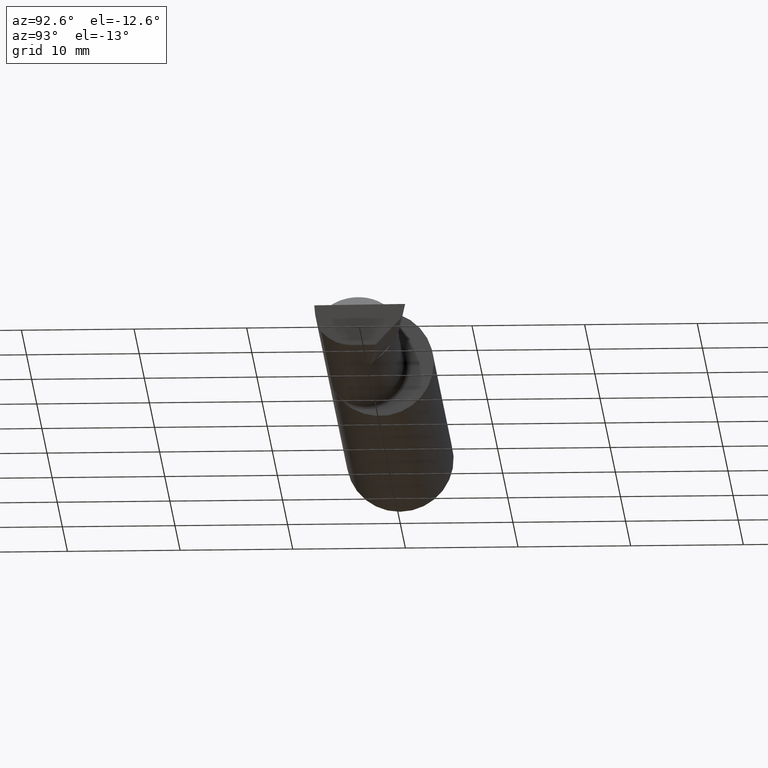
[diagram: clean part render]
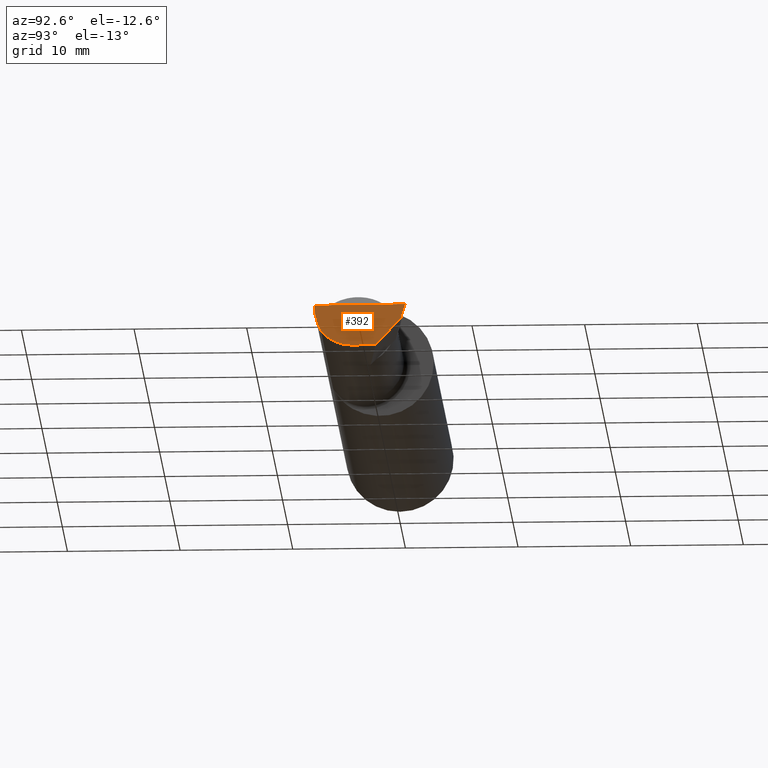
[diagram: same view with one face highlighted and labeled with its STEP entity id]
A machine part, auxiliary view. The second image highlights one B-rep face of the part: STEP entity #392.
In plain terms, the highlighted planar face has unit normal (-0.9922, 0.026, 0.1219).
Its self-contained STEP definition (entity closure, byte-faithful):
#1 = PLANE ( 'NONE',  #517 ) ;
#13 = CARTESIAN_POINT ( 'NONE',  ( 2.493766568580444432, 0.1168246249203732934, -0.04780233936830599606 ) ) ;
#17 = CARTESIAN_POINT ( 'NONE',  ( 2.493439983562941720, 0.1146611065212079089, -0.04999999999999999584 ) ) ;
#21 = VECTOR ( 'NONE', #584, 39.37007874015748854 ) ;
#35 =( BOUNDED_CURVE ( )  B_SPLINE_CURVE ( 3, ( #502, #418, #177, #459 ),
 .UNSPECIFIED., .F., .T. ) 
 B_SPLINE_CURVE_WITH_KNOTS ( ( 4, 4 ),
 ( 0.8516985021657653698, 1.360746882515200484 ),
 .UNSPECIFIED. ) 
 CURVE ( )  GEOMETRIC_REPRESENTATION_ITEM ( )  RATIONAL_B_SPLINE_CURVE ( ( 1.000000000000000000, 0.9785221379938656705, 0.9785221379938656705, 1.000000000000000000 ) ) 
 REPRESENTATION_ITEM ( '' )  );
#46 = VERTEX_POINT ( 'NONE', #512 ) ;
#50 = FACE_OUTER_BOUND ( 'NONE', #90, .T. ) ;
#51 = EDGE_CURVE ( 'NONE', #379, #128, #35, .T. ) ;
#60 = CARTESIAN_POINT ( 'NONE',  ( 2.500188977433779769, 0.1311105994646662165, 0.001440373173041280741 ) ) ;
#68 = EDGE_CURVE ( 'NONE', #620, #589, #403, .T. ) ;
#70 = LINE ( 'NONE', #60, #298 ) ;
#73 = CARTESIAN_POINT ( 'NONE',  ( 2.477873865042410806, -0.05739999999999999963, -0.1400500000000000633 ) ) ;
#86 = CARTESIAN_POINT ( 'NONE',  ( 2.480058035321255794, 0.02601009779168077587, -0.1400500000000000633 ) ) ;
#90 = EDGE_LOOP ( 'NONE', ( #96, #438, #268, #136, #349, #474 ) ) ;
#96 = ORIENTED_EDGE ( 'NONE', *, *, #288, .T. ) ;
#117 = VECTOR ( 'NONE', #168, 39.37007874015748854 ) ;
#128 = VERTEX_POINT ( 'NONE', #308 ) ;
#133 = VERTEX_POINT ( 'NONE', #73 ) ;
#136 = ORIENTED_EDGE ( 'NONE', *, *, #156, .T. ) ;
#156 = EDGE_CURVE ( 'NONE', #589, #46, #70, .T. ) ;
#168 = DIRECTION ( 'NONE',  ( 0.1053106618240635256, 0.6976485211320200275, 0.7086580314005359593 ) ) ;
#177 = CARTESIAN_POINT ( 'NONE',  ( 2.487725449370724817, -0.1873500000000000443, -0.03213820089768505694 ) ) ;
#211 =( BOUNDED_CURVE ( )  B_SPLINE_CURVE ( 3, ( #561, #425, #323, #612 ),
 .UNSPECIFIED., .F., .T. ) 
 B_SPLINE_CURVE_WITH_KNOTS ( ( 4, 4 ),
 ( 5.632580117768154260, 6.493234751459282528 ),
 .UNSPECIFIED. ) 
 CURVE ( )  GEOMETRIC_REPRESENTATION_ITEM ( )  RATIONAL_B_SPLINE_CURVE ( ( 1.000000000000000000, 0.9392195014330942948, 0.9392195014330942948, 1.000000000000000000 ) ) 
 REPRESENTATION_ITEM ( '' )  );
#237 = EDGE_CURVE ( 'NONE', #620, #133, #619, .T. ) ;
#261 = DIRECTION ( 'NONE',  ( 0.1240019227988267692, 0.3022330132596590113, 0.9451342385281470415 ) ) ;
#268 = ORIENTED_EDGE ( 'NONE', *, *, #68, .T. ) ;
#280 = CARTESIAN_POINT ( 'NONE',  ( 2.477889026591898247, -0.05682100378451882677, -0.1400500000000000633 ) ) ;
#288 = EDGE_CURVE ( 'NONE', #379, #133, #211, .T. ) ;
#294 = DIRECTION ( 'NONE',  ( 0.1219104985251942275, 0.000000000000000000, 0.9925410975618785825 ) ) ;
#298 = VECTOR ( 'NONE', #261, 39.37007874015748854 ) ;
#305 = VECTOR ( 'NONE', #428, 39.37007874015748143 ) ;
#308 = CARTESIAN_POINT ( 'NONE',  ( 2.491672876940991710, -0.1873499999999999888, 6.915950918908297591E-17 ) ) ;
#323 = CARTESIAN_POINT ( 'NONE',  ( 2.476787929832031221, -0.09887019258091189755, -0.1400500000000000078 ) ) ;
#341 = EDGE_CURVE ( 'NONE', #128, #46, #583, .T. ) ;
#343 = DIRECTION ( 'NONE',  ( -0.9922060308645608284, 0.02598182930461468559, 0.1218693434050591162 ) ) ;
#345 = CARTESIAN_POINT ( 'NONE',  ( 2.490039159128059953, -0.2497391662021650194, 6.932588350567417155E-17 ) ) ;
#349 = ORIENTED_EDGE ( 'NONE', *, *, #341, .F. ) ;
#379 = VERTEX_POINT ( 'NONE', #442 ) ;
#392 = ADVANCED_FACE ( 'NONE', ( #50 ), #1, .F. ) ;
#403 = LINE ( 'NONE', #13, #117 ) ;
#418 = CARTESIAN_POINT ( 'NONE',  ( 2.484117089522337452, -0.1792580844883771285, -0.06324101202936134591 ) ) ;
#425 = CARTESIAN_POINT ( 'NONE',  ( 2.477925907309857401, -0.1365595166907236646, -0.1227499502647107360 ) ) ;
#428 = DIRECTION ( 'NONE',  ( -0.02617694830779365364, -0.9996573249755593693, -8.535148296544462419E-17 ) ) ;
#438 = ORIENTED_EDGE ( 'NONE', *, *, #237, .F. ) ;
#442 = CARTESIAN_POINT ( 'NONE',  ( 2.481080296960508580, -0.1635956445993030639, -0.09130436773856169530 ) ) ;
#459 = CARTESIAN_POINT ( 'NONE',  ( 2.491672876940991710, -0.1873499999999999888, 6.915950918908297591E-17 ) ) ;
#474 = ORIENTED_EDGE ( 'NONE', *, *, #51, .F. ) ;
#502 = CARTESIAN_POINT ( 'NONE',  ( 2.481080296960508580, -0.1635956445993030639, -0.09130436773856169530 ) ) ;
#512 = CARTESIAN_POINT ( 'NONE',  ( 2.499999999999978684, 0.1306500000000238582, 8.403660643088248419E-14 ) ) ;
#517 = AXIS2_PLACEMENT_3D ( 'NONE', #577, #343, #294 ) ;
#561 = CARTESIAN_POINT ( 'NONE',  ( 2.481080296960508580, -0.1635956445993030639, -0.09130436773856169530 ) ) ;
#577 = CARTESIAN_POINT ( 'NONE',  ( 2.475850273311264615, -0.1244607267090816621, -0.1422282308645907711 ) ) ;
#583 = LINE ( 'NONE', #345, #21 ) ;
#584 = DIRECTION ( 'NONE',  ( 0.02617694830779364323, 0.9996573249755593693, -2.665804247635780349E-18 ) ) ;
#589 = VERTEX_POINT ( 'NONE', #17 ) ;
#612 = CARTESIAN_POINT ( 'NONE',  ( 2.477873865042410806, -0.05739999999999999963, -0.1400500000000000633 ) ) ;
#619 = LINE ( 'NONE', #280, #305 ) ;
#620 = VERTEX_POINT ( 'NONE', #86 ) ;